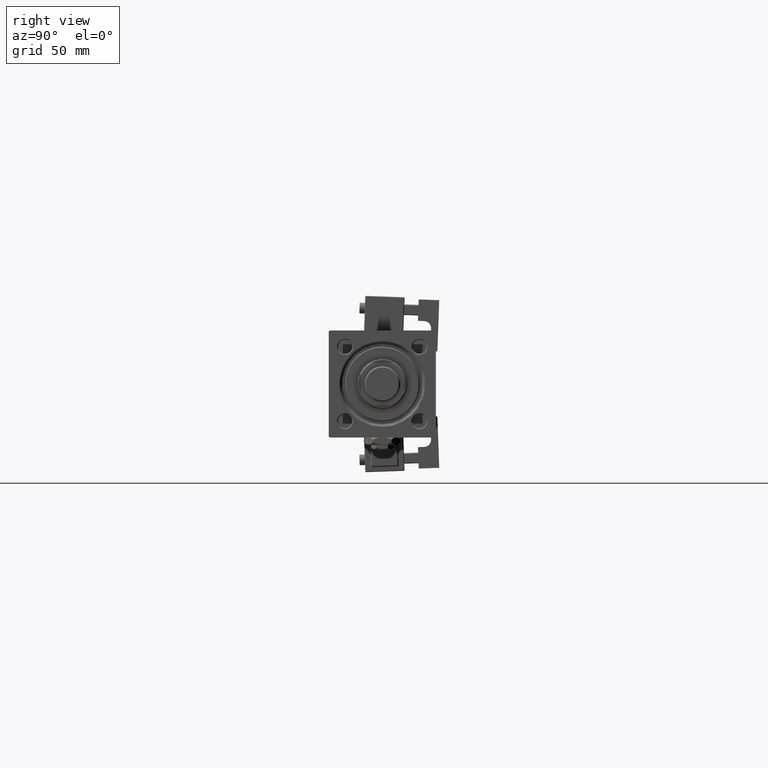
[diagram: clean part render]
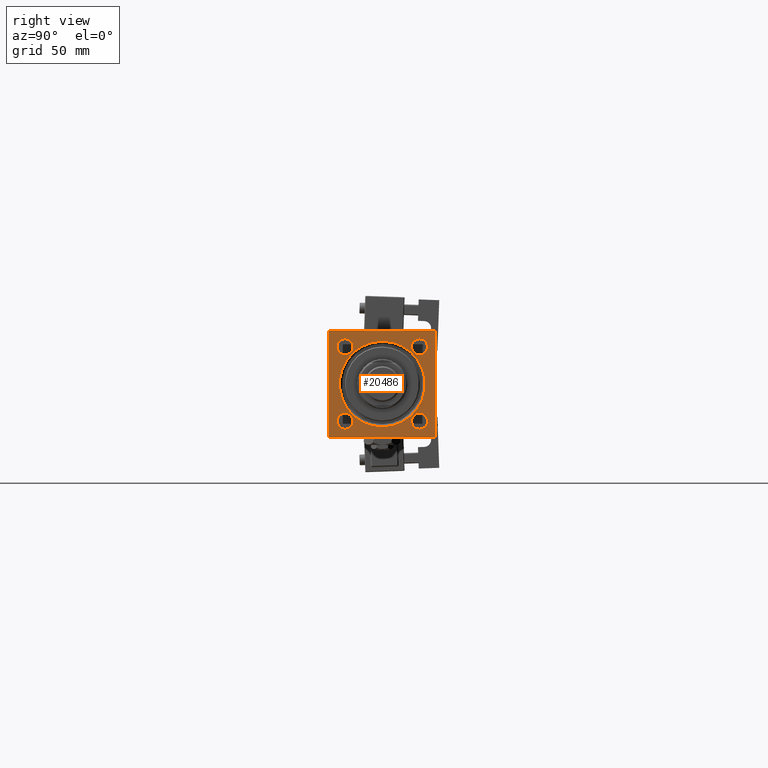
[diagram: same view with one face highlighted and labeled with its STEP entity id]
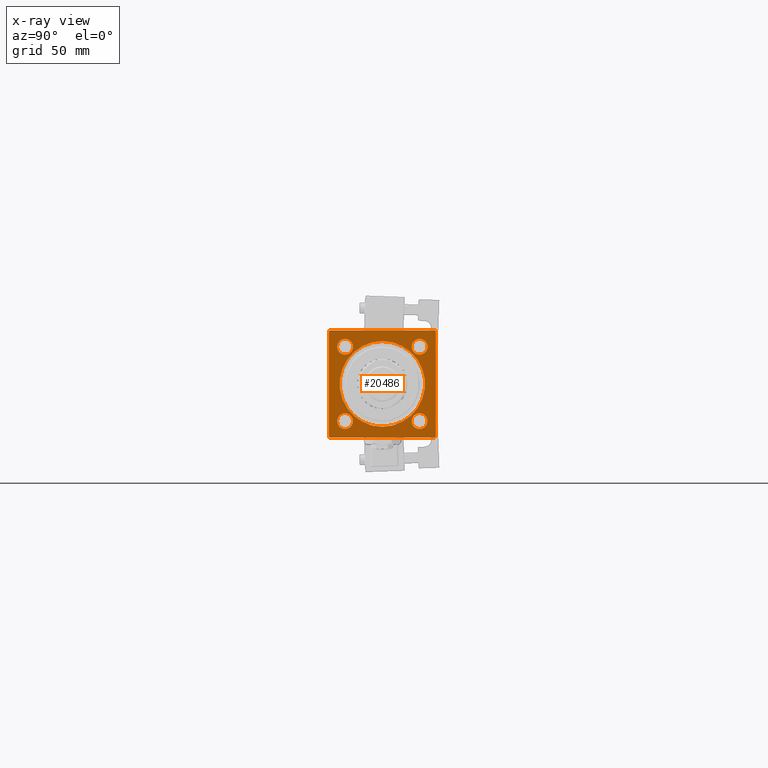
[diagram: x-ray of the same camera — body ghosted, the highlighted face saturated]
A machine part, right view. The second image highlights one B-rep face of the part: STEP entity #20486.
The next image is the same camera in x-ray: the body ghosted, the highlighted face saturated — about 0% of this face is hidden behind the body in this view.
In plain terms, the highlighted planar face has unit normal (-1, 0, 0).
Its self-contained STEP definition (entity closure, byte-faithful):
#144 = CARTESIAN_POINT ( 'NONE',  ( 327.9999999999999432, 0.000000000000000000, 0.000000000000000000 ) ) ;
#280 = CARTESIAN_POINT ( 'NONE',  ( 327.9999999999999432, -30.00000000000000000, -29.50000000000001066 ) ) ;
#329 = LINE ( 'NONE', #17263, #22820 ) ;
#555 = CARTESIAN_POINT ( 'NONE',  ( 327.9999999999999432, 20.84999999999999787, 25.35000000000008669 ) ) ;
#558 = CARTESIAN_POINT ( 'NONE',  ( 327.9999999999999432, 20.84999999999999787, 20.85000000000000142 ) ) ;
#1024 = PLANE ( 'NONE',  #50075 ) ;
#1448 = DIRECTION ( 'NONE',  ( 0.000000000000000000, 0.7071067811865474617, -0.7071067811865474617 ) ) ;
#2327 = DIRECTION ( 'NONE',  ( 0.000000000000000000, 0.000000000000000000, 1.000000000000000000 ) ) ;
#2343 = AXIS2_PLACEMENT_3D ( 'NONE', #7634, #24582, #4011 ) ;
#2450 = ORIENTED_EDGE ( 'NONE', *, *, #50379, .T. ) ;
#2710 = ORIENTED_EDGE ( 'NONE', *, *, #53987, .F. ) ;
#3722 = DIRECTION ( 'NONE',  ( 0.000000000000000000, 0.000000000000000000, 1.000000000000000000 ) ) ;
#4011 = DIRECTION ( 'NONE',  ( 0.000000000000000000, 0.000000000000000000, 1.000000000000000000 ) ) ;
#4521 = CARTESIAN_POINT ( 'NONE',  ( 327.9999999999999432, -29.50000000000002487, -30.00000000000000000 ) ) ;
#4537 = EDGE_LOOP ( 'NONE', ( #26207, #8656 ) ) ;
#4834 = CARTESIAN_POINT ( 'NONE',  ( 327.9999999999999432, -30.00000000000000000, 29.49999999999999289 ) ) ;
#5307 = ORIENTED_EDGE ( 'NONE', *, *, #35865, .T. ) ;
#5561 = EDGE_CURVE ( 'NONE', #10230, #43724, #20455, .T. ) ;
#5571 = LINE ( 'NONE', #17793, #53613 ) ;
#5847 = EDGE_CURVE ( 'NONE', #26595, #38251, #29949, .T. ) ;
#5900 = CARTESIAN_POINT ( 'NONE',  ( 327.9999999999999432, -20.84999999999999432, 20.85000000000000142 ) ) ;
#5955 = CARTESIAN_POINT ( 'NONE',  ( 327.9999999999999432, 0.000000000000000000, -23.99999999999999645 ) ) ;
#6589 = EDGE_CURVE ( 'NONE', #48811, #36336, #52980, .T. ) ;
#6700 = CARTESIAN_POINT ( 'NONE',  ( 327.9999999999999432, 29.50000000000002487, 30.00000000000000000 ) ) ;
#6773 = CARTESIAN_POINT ( 'NONE',  ( 327.9999999999999432, 0.000000000000000000, 0.000000000000000000 ) ) ;
#6818 = AXIS2_PLACEMENT_3D ( 'NONE', #558, #9446, #21970 ) ;
#6907 = CARTESIAN_POINT ( 'NONE',  ( 327.9999999999999432, 20.84999999999999787, -25.35000000000008669 ) ) ;
#7058 = DIRECTION ( 'NONE',  ( -1.000000000000000000, 0.000000000000000000, -0.000000000000000000 ) ) ;
#7310 = EDGE_LOOP ( 'NONE', ( #10801, #5307, #2710, #12320, #37175, #38528, #16311, #2450 ) ) ;
#7341 = CARTESIAN_POINT ( 'NONE',  ( 327.9999999999999432, -20.84999999999999432, 20.85000000000000142 ) ) ;
#7393 = DIRECTION ( 'NONE',  ( 0.000000000000000000, 0.000000000000000000, 1.000000000000000000 ) ) ;
#7634 = CARTESIAN_POINT ( 'NONE',  ( 327.9999999999999432, 20.84999999999999787, -20.85000000000000142 ) ) ;
#8336 = VERTEX_POINT ( 'NONE', #37160 ) ;
#8525 = DIRECTION ( 'NONE',  ( 0.000000000000000000, -1.000000000000000000, -1.156482317317871478E-16 ) ) ;
#8656 = ORIENTED_EDGE ( 'NONE', *, *, #23621, .T. ) ;
#8784 = CARTESIAN_POINT ( 'NONE',  ( 327.9999999999999432, -20.84999999999999432, 16.34999999999991260 ) ) ;
#8854 = CARTESIAN_POINT ( 'NONE',  ( 327.9999999999999432, 29.50000000000002487, 30.00000000000000000 ) ) ;
#9103 = DIRECTION ( 'NONE',  ( 0.000000000000000000, 0.000000000000000000, 1.000000000000000000 ) ) ;
#9362 = FACE_BOUND ( 'NONE', #16113, .T. ) ;
#9446 = DIRECTION ( 'NONE',  ( -1.000000000000000000, 0.000000000000000000, -0.000000000000000000 ) ) ;
#9456 = AXIS2_PLACEMENT_3D ( 'NONE', #144, #24619, #7393 ) ;
#9693 = ORIENTED_EDGE ( 'NONE', *, *, #37206, .T. ) ;
#9908 = FACE_BOUND ( 'NONE', #12138, .T. ) ;
#10015 = VECTOR ( 'NONE', #8525, 1000.000000000000000 ) ;
#10230 = VERTEX_POINT ( 'NONE', #47388 ) ;
#10801 = ORIENTED_EDGE ( 'NONE', *, *, #20146, .T. ) ;
#11474 = VECTOR ( 'NONE', #51767, 1000.000000000000114 ) ;
#12047 = DIRECTION ( 'NONE',  ( -1.000000000000000000, 0.000000000000000000, -0.000000000000000000 ) ) ;
#12138 = EDGE_LOOP ( 'NONE', ( #32924, #16557 ) ) ;
#12145 = CIRCLE ( 'NONE', #6818, 4.500000000000087041 ) ;
#12320 = ORIENTED_EDGE ( 'NONE', *, *, #45716, .T. ) ;
#13258 = FACE_BOUND ( 'NONE', #4537, .T. ) ;
#13461 = ORIENTED_EDGE ( 'NONE', *, *, #19294, .T. ) ;
#14637 = CIRCLE ( 'NONE', #39465, 4.500000000000087041 ) ;
#14696 = CARTESIAN_POINT ( 'NONE',  ( 327.9999999999999432, -20.85000000000000142, -20.85000000000000142 ) ) ;
#14937 = VECTOR ( 'NONE', #17722, 1000.000000000000114 ) ;
#15671 = CIRCLE ( 'NONE', #20999, 4.500000000000087041 ) ;
#15771 = CARTESIAN_POINT ( 'NONE',  ( 327.9999999999999432, 29.50000000000000000, -29.99999999999999289 ) ) ;
#15982 = EDGE_CURVE ( 'NONE', #18895, #33917, #28819, .T. ) ;
#16113 = EDGE_LOOP ( 'NONE', ( #21390, #48572 ) ) ;
#16311 = ORIENTED_EDGE ( 'NONE', *, *, #15982, .T. ) ;
#16557 = ORIENTED_EDGE ( 'NONE', *, *, #27087, .T. ) ;
#16559 = CIRCLE ( 'NONE', #9456, 23.99999999999999645 ) ;
#17263 = CARTESIAN_POINT ( 'NONE',  ( 327.9999999999999432, 30.00000000000000000, -29.49999999999999289 ) ) ;
#17722 = DIRECTION ( 'NONE',  ( 0.000000000000000000, -0.7071067811865474617, 0.7071067811865474617 ) ) ;
#17793 = CARTESIAN_POINT ( 'NONE',  ( 327.9999999999999432, -30.00000000000000000, 29.99999999999999289 ) ) ;
#17848 = DIRECTION ( 'NONE',  ( -1.000000000000000000, 0.000000000000000000, -0.000000000000000000 ) ) ;
#18119 = LINE ( 'NONE', #4521, #46501 ) ;
#18619 = DIRECTION ( 'NONE',  ( 0.000000000000000000, 0.000000000000000000, -1.000000000000000000 ) ) ;
#18895 = VERTEX_POINT ( 'NONE', #6700 ) ;
#19294 = EDGE_CURVE ( 'NONE', #8336, #22347, #22545, .T. ) ;
#20146 = EDGE_CURVE ( 'NONE', #24273, #42189, #5571, .T. ) ;
#20455 = LINE ( 'NONE', #45728, #54716 ) ;
#20486 = ADVANCED_FACE ( 'NONE', ( #9908, #34382, #51308, #13258, #9362, #26871 ), #1024, .F. ) ;
#20990 = DIRECTION ( 'NONE',  ( -1.000000000000000000, 0.000000000000000000, -0.000000000000000000 ) ) ;
#20999 = AXIS2_PLACEMENT_3D ( 'NONE', #5900, #17848, #47279 ) ;
#21101 = VERTEX_POINT ( 'NONE', #555 ) ;
#21390 = ORIENTED_EDGE ( 'NONE', *, *, #42807, .T. ) ;
#21651 = CARTESIAN_POINT ( 'NONE',  ( 327.9999999999999432, -30.00000000000000000, 29.49999999999999289 ) ) ;
#21970 = DIRECTION ( 'NONE',  ( 0.000000000000000000, 0.000000000000000000, 1.000000000000000000 ) ) ;
#22347 = VERTEX_POINT ( 'NONE', #51054 ) ;
#22479 = CARTESIAN_POINT ( 'NONE',  ( 327.9999999999999432, -20.84999999999999432, 25.35000000000008669 ) ) ;
#22545 = CIRCLE ( 'NONE', #29660, 4.500000000000087041 ) ;
#22820 = VECTOR ( 'NONE', #34227, 1000.000000000000114 ) ;
#23621 = EDGE_CURVE ( 'NONE', #52024, #37611, #28978, .T. ) ;
#23728 = CIRCLE ( 'NONE', #52101, 4.500000000000087041 ) ;
#24273 = VERTEX_POINT ( 'NONE', #21651 ) ;
#24582 = DIRECTION ( 'NONE',  ( -1.000000000000000000, 0.000000000000000000, -0.000000000000000000 ) ) ;
#24619 = DIRECTION ( 'NONE',  ( -1.000000000000000000, 0.000000000000000000, -0.000000000000000000 ) ) ;
#25132 = DIRECTION ( 'NONE',  ( 0.000000000000000000, -1.000000000000000000, -1.156482317317871478E-16 ) ) ;
#25453 = CARTESIAN_POINT ( 'NONE',  ( 327.9999999999999432, -29.50000000000000000, 29.99999999999999289 ) ) ;
#26077 = DIRECTION ( 'NONE',  ( 0.000000000000000000, 0.000000000000000000, 1.000000000000000000 ) ) ;
#26207 = ORIENTED_EDGE ( 'NONE', *, *, #28248, .T. ) ;
#26595 = VERTEX_POINT ( 'NONE', #28722 ) ;
#26871 = FACE_OUTER_BOUND ( 'NONE', #7310, .T. ) ;
#27087 = EDGE_CURVE ( 'NONE', #21101, #31001, #12145, .T. ) ;
#27720 = EDGE_CURVE ( 'NONE', #36336, #48811, #15671, .T. ) ;
#28248 = EDGE_CURVE ( 'NONE', #37611, #52024, #23728, .T. ) ;
#28353 = ORIENTED_EDGE ( 'NONE', *, *, #6589, .T. ) ;
#28722 = CARTESIAN_POINT ( 'NONE',  ( 327.9999999999999432, 2.939152317953647500E-15, 23.99999999999999645 ) ) ;
#28819 = LINE ( 'NONE', #46567, #10015 ) ;
#28978 = CIRCLE ( 'NONE', #2343, 4.500000000000087041 ) ;
#29660 = AXIS2_PLACEMENT_3D ( 'NONE', #14696, #39979, #31665 ) ;
#29949 = CIRCLE ( 'NONE', #51084, 23.99999999999999645 ) ;
#30471 = ORIENTED_EDGE ( 'NONE', *, *, #27720, .T. ) ;
#30711 = VERTEX_POINT ( 'NONE', #38545 ) ;
#31001 = VERTEX_POINT ( 'NONE', #44830 ) ;
#31282 = EDGE_CURVE ( 'NONE', #10230, #18895, #38836, .T. ) ;
#31456 = CARTESIAN_POINT ( 'NONE',  ( 327.9999999999999432, 20.84999999999999787, -16.34999999999991260 ) ) ;
#31665 = DIRECTION ( 'NONE',  ( 0.000000000000000000, 0.000000000000000000, 1.000000000000000000 ) ) ;
#32137 = DIRECTION ( 'NONE',  ( 0.000000000000000000, 0.000000000000000000, -1.000000000000000000 ) ) ;
#32924 = ORIENTED_EDGE ( 'NONE', *, *, #42527, .T. ) ;
#33196 = EDGE_LOOP ( 'NONE', ( #30471, #28353 ) ) ;
#33227 = DIRECTION ( 'NONE',  ( 0.000000000000000000, 0.000000000000000000, 1.000000000000000000 ) ) ;
#33691 = VECTOR ( 'NONE', #25132, 1000.000000000000000 ) ;
#33917 = VERTEX_POINT ( 'NONE', #25453 ) ;
#34227 = DIRECTION ( 'NONE',  ( -0.000000000000000000, 0.7071067811865474617, 0.7071067811865474617 ) ) ;
#34382 = FACE_BOUND ( 'NONE', #33196, .T. ) ;
#34577 = LINE ( 'NONE', #4834, #11474 ) ;
#34927 = DIRECTION ( 'NONE',  ( -1.000000000000000000, 0.000000000000000000, -0.000000000000000000 ) ) ;
#35113 = AXIS2_PLACEMENT_3D ( 'NONE', #43264, #39091, #9103 ) ;
#35865 = EDGE_CURVE ( 'NONE', #42189, #30711, #18119, .T. ) ;
#36336 = VERTEX_POINT ( 'NONE', #8784 ) ;
#36913 = AXIS2_PLACEMENT_3D ( 'NONE', #7341, #12047, #3722 ) ;
#36938 = VERTEX_POINT ( 'NONE', #15771 ) ;
#37160 = CARTESIAN_POINT ( 'NONE',  ( 327.9999999999999432, -20.85000000000000142, -25.35000000000008669 ) ) ;
#37175 = ORIENTED_EDGE ( 'NONE', *, *, #5561, .F. ) ;
#37206 = EDGE_CURVE ( 'NONE', #22347, #8336, #14637, .T. ) ;
#37384 = CARTESIAN_POINT ( 'NONE',  ( 327.9999999999999432, -20.85000000000000142, -20.85000000000000142 ) ) ;
#37611 = VERTEX_POINT ( 'NONE', #6907 ) ;
#38251 = VERTEX_POINT ( 'NONE', #5955 ) ;
#38528 = ORIENTED_EDGE ( 'NONE', *, *, #31282, .T. ) ;
#38545 = CARTESIAN_POINT ( 'NONE',  ( 327.9999999999999432, -29.50000000000002487, -30.00000000000000000 ) ) ;
#38836 = LINE ( 'NONE', #8854, #14937 ) ;
#39091 = DIRECTION ( 'NONE',  ( -1.000000000000000000, 0.000000000000000000, -0.000000000000000000 ) ) ;
#39354 = CARTESIAN_POINT ( 'NONE',  ( 327.9999999999999432, 0.000000000000000000, 0.000000000000000000 ) ) ;
#39465 = AXIS2_PLACEMENT_3D ( 'NONE', #37384, #20990, #33227 ) ;
#39979 = DIRECTION ( 'NONE',  ( -1.000000000000000000, 0.000000000000000000, -0.000000000000000000 ) ) ;
#40614 = EDGE_LOOP ( 'NONE', ( #13461, #9693 ) ) ;
#41516 = LINE ( 'NONE', #42342, #33691 ) ;
#42189 = VERTEX_POINT ( 'NONE', #280 ) ;
#42342 = CARTESIAN_POINT ( 'NONE',  ( 327.9999999999999432, 30.00000000000000000, -29.99999999999999289 ) ) ;
#42527 = EDGE_CURVE ( 'NONE', #31001, #21101, #43103, .T. ) ;
#42807 = EDGE_CURVE ( 'NONE', #38251, #26595, #16559, .T. ) ;
#43003 = DIRECTION ( 'NONE',  ( -1.000000000000000000, 0.000000000000000000, -0.000000000000000000 ) ) ;
#43103 = CIRCLE ( 'NONE', #35113, 4.500000000000087041 ) ;
#43264 = CARTESIAN_POINT ( 'NONE',  ( 327.9999999999999432, 20.84999999999999787, 20.85000000000000142 ) ) ;
#43724 = VERTEX_POINT ( 'NONE', #49321 ) ;
#44830 = CARTESIAN_POINT ( 'NONE',  ( 327.9999999999999432, 20.84999999999999787, 16.34999999999991260 ) ) ;
#45716 = EDGE_CURVE ( 'NONE', #36938, #43724, #329, .T. ) ;
#45728 = CARTESIAN_POINT ( 'NONE',  ( 327.9999999999999432, 30.00000000000000000, 30.00000000000000000 ) ) ;
#46501 = VECTOR ( 'NONE', #1448, 1000.000000000000114 ) ;
#46567 = CARTESIAN_POINT ( 'NONE',  ( 327.9999999999999432, 30.00000000000000000, 30.00000000000000000 ) ) ;
#46630 = CARTESIAN_POINT ( 'NONE',  ( 327.9999999999999432, 20.84999999999999787, -20.85000000000000142 ) ) ;
#47279 = DIRECTION ( 'NONE',  ( 0.000000000000000000, 0.000000000000000000, 1.000000000000000000 ) ) ;
#47388 = CARTESIAN_POINT ( 'NONE',  ( 327.9999999999999432, 30.00000000000000000, 29.50000000000002487 ) ) ;
#48572 = ORIENTED_EDGE ( 'NONE', *, *, #5847, .T. ) ;
#48811 = VERTEX_POINT ( 'NONE', #22479 ) ;
#49321 = CARTESIAN_POINT ( 'NONE',  ( 327.9999999999999432, 30.00000000000000000, -29.49999999999997868 ) ) ;
#50075 = AXIS2_PLACEMENT_3D ( 'NONE', #39354, #34927, #52395 ) ;
#50379 = EDGE_CURVE ( 'NONE', #33917, #24273, #34577, .T. ) ;
#51054 = CARTESIAN_POINT ( 'NONE',  ( 327.9999999999999432, -20.85000000000000142, -16.34999999999991260 ) ) ;
#51084 = AXIS2_PLACEMENT_3D ( 'NONE', #6773, #7058, #2327 ) ;
#51308 = FACE_BOUND ( 'NONE', #40614, .T. ) ;
#51767 = DIRECTION ( 'NONE',  ( -0.000000000000000000, -0.7071067811865474617, -0.7071067811865474617 ) ) ;
#52024 = VERTEX_POINT ( 'NONE', #31456 ) ;
#52101 = AXIS2_PLACEMENT_3D ( 'NONE', #46630, #43003, #26077 ) ;
#52395 = DIRECTION ( 'NONE',  ( -0.000000000000000000, 0.000000000000000000, 1.000000000000000000 ) ) ;
#52980 = CIRCLE ( 'NONE', #36913, 4.500000000000087041 ) ;
#53613 = VECTOR ( 'NONE', #18619, 1000.000000000000000 ) ;
#53987 = EDGE_CURVE ( 'NONE', #36938, #30711, #41516, .T. ) ;
#54716 = VECTOR ( 'NONE', #32137, 1000.000000000000000 ) ;